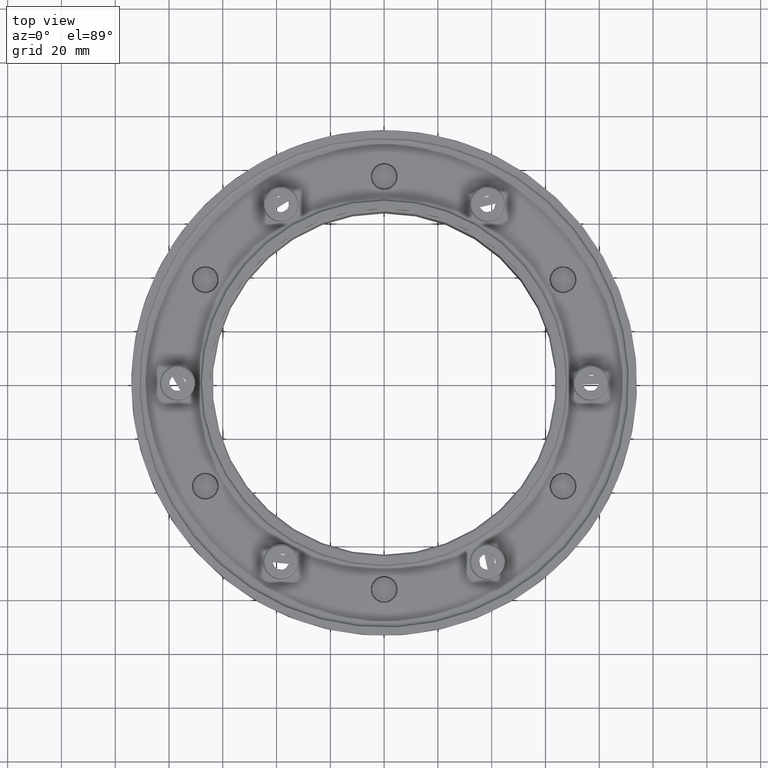
[diagram: clean part render]
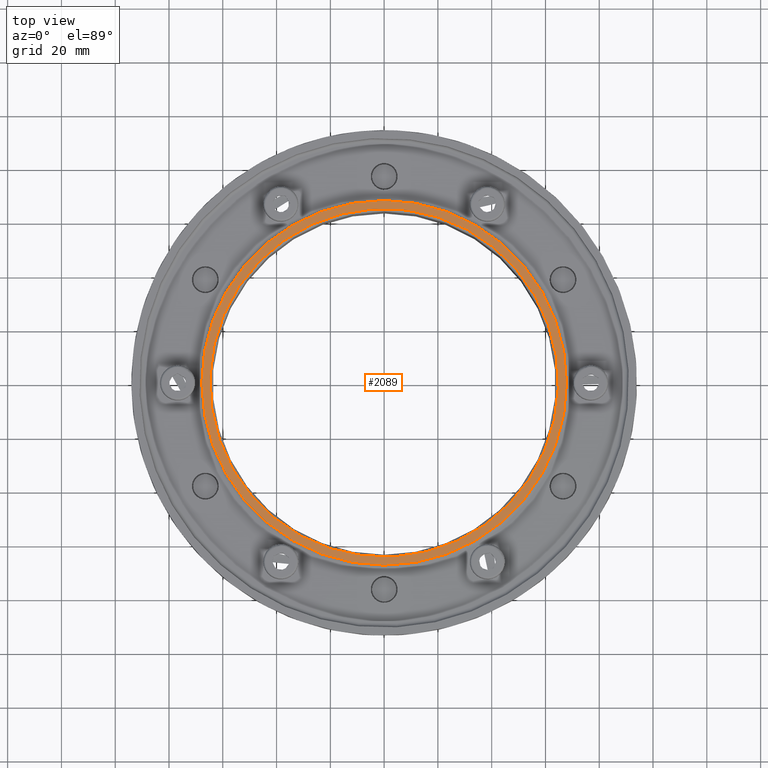
[diagram: same view with one face highlighted and labeled with its STEP entity id]
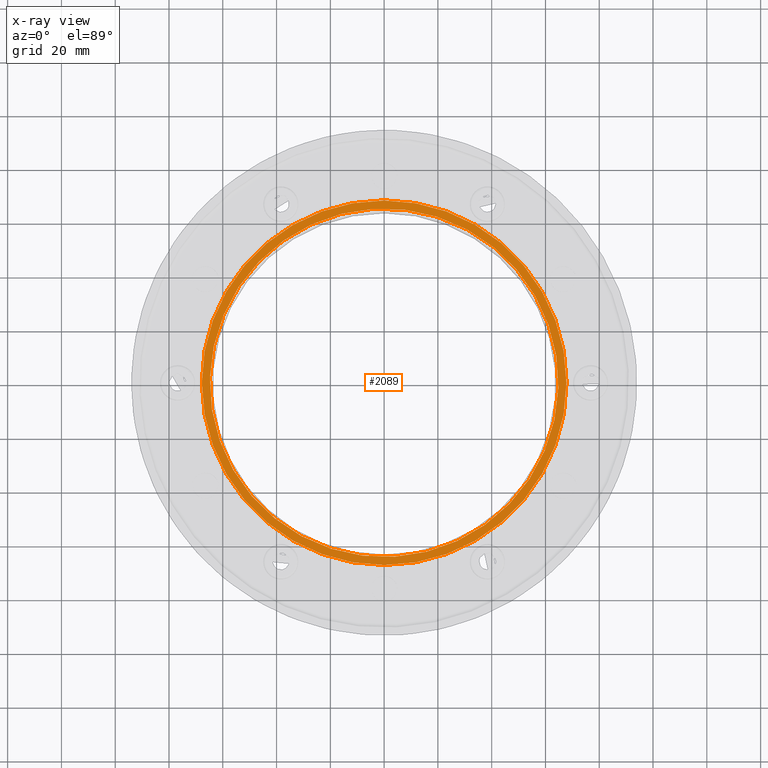
[diagram: x-ray of the same camera — body ghosted, the highlighted face saturated]
A machine part, top view. The second image highlights one B-rep face of the part: STEP entity #2089.
The next image is the same camera in x-ray: the body ghosted, the highlighted face saturated — about 0% of this face is hidden behind the body in this view.
In plain terms, the highlighted planar face has unit normal (-0, -0, 1).
Its self-contained STEP definition (entity closure, byte-faithful):
#123=FACE_BOUND('',#470,.T.);
#154=PLANE('',#2477);
#311=FACE_OUTER_BOUND('',#469,.T.);
#469=EDGE_LOOP('',(#1828,#1829));
#470=EDGE_LOOP('',(#1830,#1831));
#835=CIRCLE('',#2456,67.8);
#836=CIRCLE('',#2457,67.8);
#841=CIRCLE('',#2464,64.8);
#842=CIRCLE('',#2465,64.8);
#1036=VERTEX_POINT('',#3730);
#1037=VERTEX_POINT('',#3731);
#1041=VERTEX_POINT('',#3744);
#1042=VERTEX_POINT('',#3745);
#1297=EDGE_CURVE('',#1036,#1037,#835,.T.);
#1298=EDGE_CURVE('',#1037,#1036,#836,.T.);
#1304=EDGE_CURVE('',#1041,#1042,#841,.T.);
#1306=EDGE_CURVE('',#1042,#1041,#842,.T.);
#1828=ORIENTED_EDGE('',*,*,#1297,.T.);
#1829=ORIENTED_EDGE('',*,*,#1298,.T.);
#1830=ORIENTED_EDGE('',*,*,#1304,.F.);
#1831=ORIENTED_EDGE('',*,*,#1306,.F.);
#2089=ADVANCED_FACE('',(#311,#123),#154,.T.);
#2456=AXIS2_PLACEMENT_3D('',#3732,#3057,#3058);
#2457=AXIS2_PLACEMENT_3D('',#3733,#3059,#3060);
#2464=AXIS2_PLACEMENT_3D('',#3746,#3074,#3075);
#2465=AXIS2_PLACEMENT_3D('',#3748,#3077,#3078);
#2477=AXIS2_PLACEMENT_3D('',#3771,#3112,#3113);
#3057=DIRECTION('center_axis',(0.,1.,0.));
#3058=DIRECTION('ref_axis',(-1.,0.,0.));
#3059=DIRECTION('center_axis',(0.,1.,0.));
#3060=DIRECTION('ref_axis',(-1.,0.,0.));
#3074=DIRECTION('center_axis',(0.,1.,0.));
#3075=DIRECTION('ref_axis',(-1.,0.,0.));
#3077=DIRECTION('center_axis',(0.,1.,0.));
#3078=DIRECTION('ref_axis',(-1.,0.,0.));
#3112=DIRECTION('center_axis',(0.,1.,0.));
#3113=DIRECTION('ref_axis',(0.,0.,1.));
#3730=CARTESIAN_POINT('',(-67.8,2.5,0.));
#3731=CARTESIAN_POINT('',(67.8,2.5,-8.30310529821906E-15));
#3732=CARTESIAN_POINT('Origin',(0.,2.5,0.));
#3733=CARTESIAN_POINT('Origin',(0.,2.5,0.));
#3744=CARTESIAN_POINT('',(-64.8,2.5,0.));
#3745=CARTESIAN_POINT('',(64.8,2.5,-7.93571125847485E-15));
#3746=CARTESIAN_POINT('Origin',(0.,2.5,0.));
#3748=CARTESIAN_POINT('Origin',(0.,2.5,0.));
#3771=CARTESIAN_POINT('Origin',(-66.3,2.5,0.));